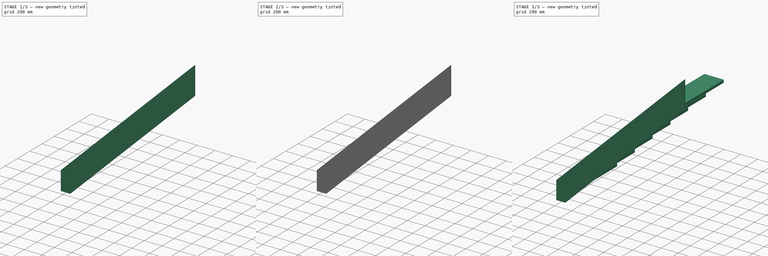
[diagram: build sequence overview — one tinted view per stage of 3, left to right]
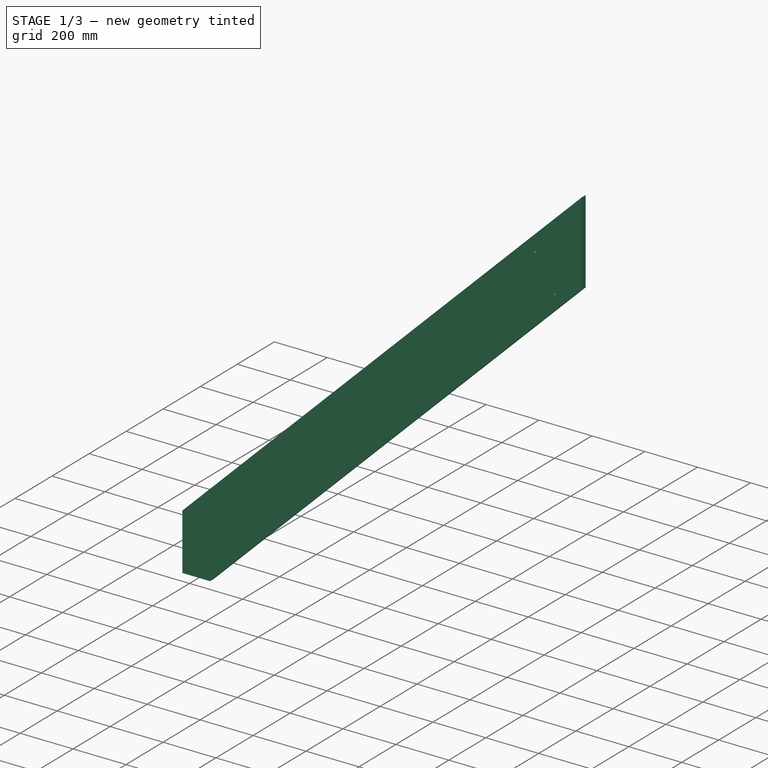
[diagram: stage 1 of 3 — iso view after this stage's code; geometry added in this stage tinted green]
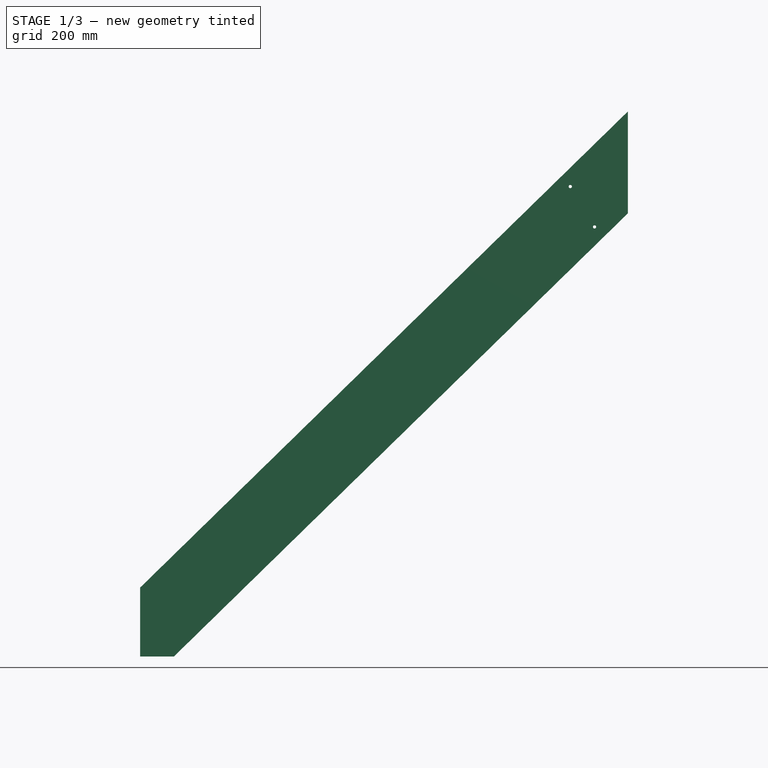
[diagram: stage 1 of 3 — front view after this stage's code; geometry added in this stage tinted green]
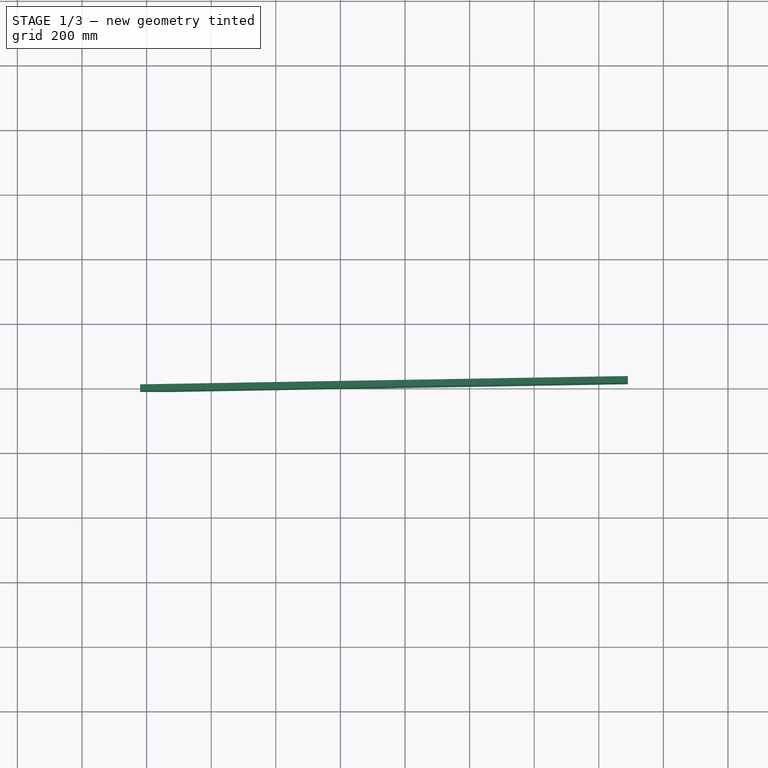
[diagram: stage 1 of 3 — top view after this stage's code; geometry added in this stage tinted green]
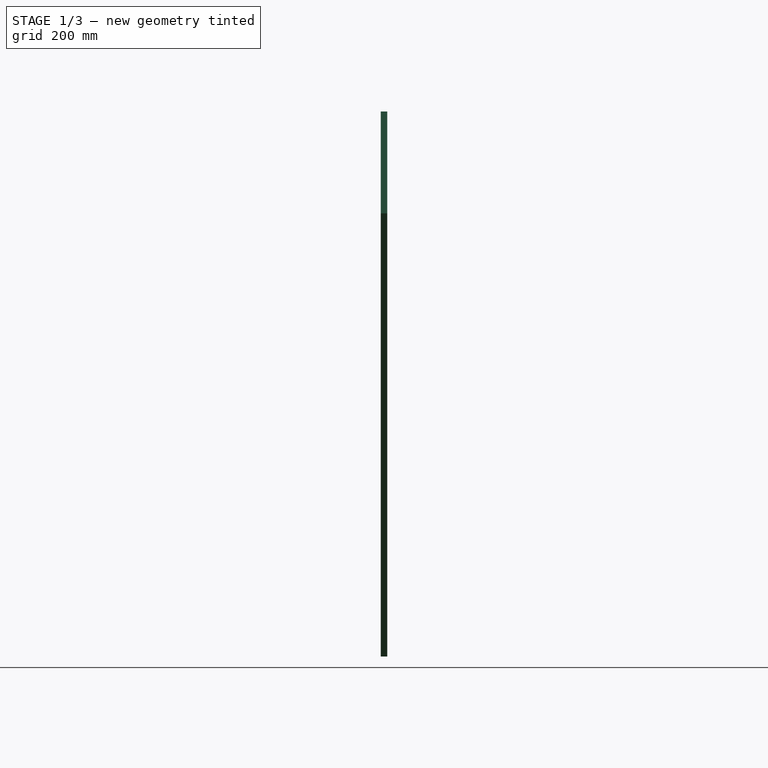
[diagram: stage 1 of 3 — right view after this stage's code; geometry added in this stage tinted green]
FCSTD DOCUMENT  (FreeCAD 0.17R10980 (Git))
Label: beam
License: All rights reserved
LicenseURL: http://en.wikipedia.org/wiki/All_rights_reserved
objects: Sketcher::SketchObject×3, Part::FeaturePython×2, PartDesign::Pocket×2, PartDesign::LinearPattern×2, PartDesign::Pad×1, Part::Part2DObjectPython×1, App::DocumentObjectGroup×1, PartDesign::Body×1, Part::Compound×1
note: 16 computed .brp shape members not serialized (recipe doc carries the construction recipe); baked Part::Feature solids carry a one-line shape summary decoded from their .brp

FEATURE [Part::FeaturePython] stair_profile_01  # a2plus imported part (geometry in sourceFile) (typed FeaturePython)
  fixedPosition = true
  sourceFile = stair_profile.fcstd
  timeLastImport = 1.49339e+09
  updateColors = true
FEATURE [Sketcher::SketchObject] Sketch
  Placement = pos=(0,0,0) rot=(-1,0,0;1.5708rad)
  sketch-geometry (27):
    g0: LineSegment [constr] StartX=0 StartY=0 StartZ=0 EndX=2105 EndY=0 EndZ=0
    g1: LineSegment [constr] StartX=1260 StartY=-1435 StartZ=0 EndX=1490 EndY=-1435 EndZ=0
    g2: LineSegment [constr] StartX=1490 StartY=-1435 StartZ=0 EndX=1490 EndY=-1400 EndZ=0
    g3: LineSegment [constr] StartX=1490 StartY=-1400 StartZ=0 EndX=1260 EndY=-1400 EndZ=0
    g4: LineSegment [constr] StartX=1260 StartY=-1400 StartZ=0 EndX=1260 EndY=-1435 EndZ=0
    g5: LineSegment [constr] StartX=0 StartY=0 StartZ=0 EndX=-775 EndY=0 EndZ=0
    g6: LineSegment [constr] StartX=-775 StartY=0 StartZ=0 EndX=-775 EndY=-2700 EndZ=0
    g7: LineSegment [constr] StartX=0 StartY=-205 StartZ=0 EndX=230 EndY=-205 EndZ=0
    g8: LineSegment [constr] StartX=230 StartY=-205 StartZ=0 EndX=230 EndY=-170 EndZ=0
    g9: LineSegment [constr] StartX=230 StartY=-170 StartZ=0 EndX=0 EndY=-170 EndZ=0
    g10: LineSegment [constr] StartX=0 StartY=-205 StartZ=0 EndX=0 EndY=-170 EndZ=0
    g11: LineSegment [constr] StartX=0 StartY=-205 StartZ=0 EndX=1260 EndY=-1435 EndZ=0
    g12: LineSegment [constr] StartX=1490 StartY=-1400 StartZ=0 EndX=230 EndY=-170 EndZ=0
    g13: LineSegment StartX=-20 StartY=-213.426 StartZ=0 EndX=1490 EndY=-1687.47 EndZ=0
    g14: LineSegment StartX=1490 StartY=-1372.05 StartZ=0 EndX=84.4849 EndY=0 EndZ=0
    g15: LineSegment StartX=-20 StartY=-213.426 StartZ=0 EndX=-20 EndY=0 EndZ=0
    g16: LineSegment StartX=-20 StartY=0 StartZ=0 EndX=84.4849 EndY=0 EndZ=0
    g17: LineSegment StartX=1490 StartY=-1372.05 StartZ=0 EndX=1490 EndY=-1687.47 EndZ=0
    g18: LineSegment [constr] StartX=5.65208 StartY=-80.7556 StartZ=0 EndX=1490 EndY=-1529.76 EndZ=0
    g19: LineSegment [constr] StartX=5.65208 StartY=-80.7556 StartZ=0 EndX=84.4849 EndY=0 EndZ=0
    g20: LineSegment [constr] StartX=5.65208 StartY=-80.7556 StartZ=0 EndX=-73.1808 EndY=-161.511 EndZ=0
    g21: LineSegment [constr] StartX=1311.89 StartY=-1330 StartZ=0 EndX=1386.89 EndY=-1330 EndZ=0
    g22: LineSegment [constr] StartX=1386.89 StartY=-1330 StartZ=0 EndX=1386.89 EndY=-1455 EndZ=0
    g23: LineSegment [constr] StartX=1386.89 StartY=-1455 StartZ=0 EndX=1311.89 EndY=-1455 EndZ=0
    g24: LineSegment [constr] StartX=1311.89 StartY=-1455 StartZ=0 EndX=1311.89 EndY=-1330 EndZ=0
    g25: LineSegment [constr] StartX=1311.89 StartY=-1455 StartZ=0 EndX=1361.43 EndY=-1404.25 EndZ=0
    g26: LineSegment [constr] StartX=1386.89 StartY=-1330 StartZ=0 EndX=1337.35 EndY=-1380.75 EndZ=0
  constraints (81):
    c: Horizontal(g1)
    c: Coincident(g1,g2)
    c: Vertical(g2)
    c: Coincident(g2,g3)
    c: Horizontal(g3)
    c: Coincident(g3,g4)
    c: Vertical(g4)
    c: Coincident(g4,g1)
    c: Vertical(g6)
    c: Horizontal(g7)
    c: Coincident(g7,g8)
    c: Vertical(g8)
    c: Coincident(g8,g9)
    c: Horizontal(g9)
    c: Coincident(g5,g6)
    c: DistanceY(g6,g6) = 2700
    c: DistanceX(g5,g5) = 775
    c: DistanceX(g0,g0) = 2105
    c: Coincident(g0,g5)
    c: Coincident(g0,g-1)
    c: Horizontal(g0)
    c: Horizontal(g5)
    c: DistanceY(g7,g-1) = 205
    c: DistanceX(g7,g7) = 230
    c: DistanceY(g8,g8) = 35
    c: Vertical(g10)
    c: Coincident(g7,g10)
    c: Coincident(g9,g10)
    c: PointOnObject(g9,g-2)
    c: DistanceX(g1,g7) = -1260
    c: DistanceY(g1,g7) = 1230
    c: DistanceX(g1,g1) = 230
    c: DistanceY(g2,g2) = 35
    c: Coincident(g7,g11)
    c: Coincident(g8,g12)
    c: Coincident(g2,g12)
    c: Coincident(g1,g11)
    c: Parallel(g14,g12)
    c: Parallel(g11,g13)
    c: DistanceX(g13,g-1) = 20
    c: PointOnObject(g14,g-1)
    c: Coincident(g15,g16)
    c: Coincident(g14,g16)
    c: PointOnObject(g15,g5)
    c: Vertical(g15)
    c: PointOnObject(g14,g2)
    c: Distance(g13,g11) = 20
    c: Distance(g14,g12) = 20
    c: Coincident(g14,g17)
    c: Coincident(g13,g17)
    c: Vertical(g17)
    c: Coincident(g13,g15)
    c: Parallel(g18,g12)  'Constraint55'
    c: PointOnObject(g18,g17)  'Constraint54'
    c: Coincident(g18,g19)
    c: Coincident(g18,g20)
    c: PointOnObject(g20,g13)
    c: PointOnObject(g19,g14)
    c: Equal(g19,g20)
    c: Parallel(g19,g20)
    c: Perpendicular(g18,g19)
    c: PointOnObject(g19,g5)
    c: Coincident(g21,g22)
    c: Coincident(g22,g23)
    c: Coincident(g23,g24)
    c: Coincident(g24,g21)
    c: Horizontal(g21)
    c: Horizontal(g23)
    c: Vertical(g22)
    c: Vertical(g24)
    c: DistanceX(g23,g23) = 75
    c: Coincident(g21,g26)
    c: Coincident(g23,g25)
    c: Perpendicular(g18,g25)
    c: PointOnObject(g25,g18)
    c: Perpendicular(g18,g26)
    c: Equal(g26,g25)
    c: PointOnObject(g26,g18)
    c: DistanceY(g24,g24) = 125
    c: DistanceY(g23,g1) = 20
    c: Distance(g21,g14) = 41.9358
FEATURE [PartDesign::Pad] Pad001
  Length = 20
  Length2 = 100
  Midplane = true
  Placement = pos=(0,0,0) rot=(-1,0,0;1.5708rad)
  Profile = -> Sketch
  Type = 0
FEATURE [Sketcher::SketchObject] Sketch002
  MapMode = 5
  Placement = pos=(0,-10,0) rot=(1,0,0;1.5708rad)
  Support = -> [Pad001]
  expr: Constraints[16] = Sketch.Constraints[16]
  expr: Constraints[17] = Sketch.Constraints[17]
  expr: Constraints[22] = -Sketch.Constraints[22]
  expr: Constraints[23] = Sketch.Constraints[23]
  expr: Constraints[32] = -Sketch.Constraints[32]
  expr: Constraints[31] = Sketch.Constraints[31]
  expr: Constraints[24] = -Sketch.Constraints[24]
  expr: Constraints[29] = Sketch.Constraints[29]
  expr: Constraints[30] = -Sketch.Constraints[30]
  expr: Constraints[69] = Sketch.Constraints[70]
  expr: Constraints[39] = Sketch.Constraints[39]
  expr: Constraints[77] = -Sketch.Constraints[78]
  expr: Constraints[15] = -Sketch.Constraints[15]
  expr: Constraints[78] = -Sketch.Constraints[79]
  sketch-geometry (31):
    g0: LineSegment [constr] StartX=0 StartY=0 StartZ=0 EndX=2105 EndY=0 EndZ=0
    g1: LineSegment [constr] StartX=1260 StartY=1435 StartZ=0 EndX=1490 EndY=1435 EndZ=0
    g2: LineSegment [constr] StartX=1490 StartY=1435 StartZ=0 EndX=1490 EndY=1400 EndZ=0
    g3: LineSegment [constr] StartX=1490 StartY=1400 StartZ=0 EndX=1260 EndY=1400 EndZ=0
    g4: LineSegment [constr] StartX=1260 StartY=1400 StartZ=0 EndX=1260 EndY=1435 EndZ=0
    g5: LineSegment [constr] StartX=0 StartY=0 StartZ=0 EndX=-775 EndY=0 EndZ=0
    g6: LineSegment [constr] StartX=-775 StartY=0 StartZ=0 EndX=-775 EndY=2700 EndZ=0
    g7: LineSegment [constr] StartX=0 StartY=205 StartZ=0 EndX=230 EndY=205 EndZ=0
    g8: LineSegment [constr] StartX=230 StartY=205 StartZ=0 EndX=230 EndY=170 EndZ=0
    g9: LineSegment [constr] StartX=230 StartY=170 StartZ=0 EndX=0 EndY=170 EndZ=0
    g10: LineSegment [constr] StartX=0 StartY=205 StartZ=0 EndX=0 EndY=170 EndZ=0
    g11: LineSegment [constr] StartX=0 StartY=205 StartZ=0 EndX=1260 EndY=1435 EndZ=0
    g12: LineSegment [constr] StartX=1490 StartY=1400 StartZ=0 EndX=230 EndY=170 EndZ=0
    g13: LineSegment [constr] StartX=-20 StartY=213.426 StartZ=0 EndX=1490 EndY=1687.47 EndZ=0
    g14: LineSegment [constr] StartX=1490 StartY=1372.05 StartZ=0 EndX=84.4849 EndY=0 EndZ=0
    g15: LineSegment [constr] StartX=-20 StartY=213.426 StartZ=0 EndX=-20 EndY=0 EndZ=0
    g16: LineSegment [constr] StartX=-20 StartY=0 StartZ=0 EndX=84.4849 EndY=0 EndZ=0
    g17: LineSegment [constr] StartX=1490 StartY=1372.05 StartZ=0 EndX=1490 EndY=1687.47 EndZ=0
    g18: LineSegment [constr] StartX=5.65208 StartY=80.7556 StartZ=0 EndX=1490 EndY=1529.76 EndZ=0
    g19: LineSegment [constr] StartX=5.65208 StartY=80.7556 StartZ=0 EndX=84.4849 EndY=0 EndZ=0
    g20: LineSegment [constr] StartX=5.65208 StartY=80.7556 StartZ=0 EndX=-73.1808 EndY=161.511 EndZ=0
    g21: LineSegment [constr] StartX=1311.89 StartY=1330 StartZ=0 EndX=1386.89 EndY=1330 EndZ=0
    g22: LineSegment [constr] StartX=1386.89 StartY=1330 StartZ=0 EndX=1386.89 EndY=1455 EndZ=0
    g23: LineSegment [constr] StartX=1386.89 StartY=1455 StartZ=0 EndX=1311.89 EndY=1455 EndZ=0
    g24: LineSegment [constr] StartX=1311.89 StartY=1455 StartZ=0 EndX=1311.89 EndY=1330 EndZ=0
    g25: LineSegment [constr] StartX=1311.89 StartY=1455 StartZ=0 EndX=1361.43 EndY=1404.25 EndZ=0
    g26: LineSegment [constr] StartX=1386.89 StartY=1330 StartZ=0 EndX=1337.35 EndY=1380.75 EndZ=0
    g27: Circle CenterX=1311.89 CenterY=1455 CenterZ=0 NormalX=0 NormalY=0 NormalZ=1 Radius=5
    g28: Circle CenterX=1386.89 CenterY=1330 CenterZ=0 NormalX=0 NormalY=0 NormalZ=1 Radius=5
    g29: Circle [constr] CenterX=1386.89 CenterY=1455 CenterZ=0 NormalX=0 NormalY=0 NormalZ=1 Radius=5
    g30: Circle [constr] CenterX=1311.89 CenterY=1330 CenterZ=0 NormalX=0 NormalY=0 NormalZ=1 Radius=5
  constraints (88):
    c: Horizontal(g1)
    c: Coincident(g1,g2)
    c: Vertical(g2)
    c: Coincident(g2,g3)
    c: Horizontal(g3)
    c: Coincident(g3,g4)
    c: Vertical(g4)
    c: Coincident(g4,g1)
    c: Vertical(g6)
    c: Horizontal(g7)
    c: Coincident(g7,g8)
    c: Vertical(g8)
    c: Coincident(g8,g9)
    c: Horizontal(g9)
    c: Coincident(g5,g6)
    c: DistanceY(g6,g6) = -2700
    c: DistanceX(g5,g5) = 775
    c: DistanceX(g0,g0) = 2105
    c: Coincident(g0,g5)
    c: Coincident(g0,g-1)
    c: Horizontal(g0)
    c: Horizontal(g5)
    c: DistanceY(g7,g-1) = -205
    c: DistanceX(g7,g7) = 230
    c: DistanceY(g8,g8) = -35
    c: Vertical(g10)
    c: Coincident(g7,g10)
    c: Coincident(g9,g10)
    c: PointOnObject(g9,g-2)
    c: DistanceX(g1,g7) = -1260
    c: DistanceY(g1,g7) = -1230
    c: DistanceX(g1,g1) = 230
    c: DistanceY(g2,g2) = -35
    c: Coincident(g7,g11)
    c: Coincident(g8,g12)
    c: Coincident(g2,g12)
    c: Coincident(g1,g11)
    c: Parallel(g14,g12)
    c: Parallel(g11,g13)
    c: DistanceX(g13,g-1) = 20
    c: PointOnObject(g14,g-1)
    c: Coincident(g15,g16)
    c: Coincident(g14,g16)
    c: PointOnObject(g15,g5)
    c: Vertical(g15)
    c: PointOnObject(g14,g2)
    c: Distance(g14,g12) = 20
    c: Coincident(g14,g17)
    c: Coincident(g13,g17)
    c: Vertical(g17)
    c: Coincident(g13,g15)
    c: Parallel(g18,g12)  'Constraint55'
    c: PointOnObject(g18,g17)  'Constraint54'
    c: Coincident(g18,g19)
    c: Coincident(g18,g20)
    c: PointOnObject(g20,g13)
    c: PointOnObject(g19,g14)
    c: Equal(g19,g20)
    c: Parallel(g19,g20)
    c: Perpendicular(g18,g19)
    c: PointOnObject(g19,g5)
    c: Coincident(g21,g22)
    c: Coincident(g22,g23)
    c: Coincident(g23,g24)
    c: Coincident(g24,g21)
    c: Horizontal(g21)
    c: Horizontal(g23)
    c: Vertical(g22)
    c: Vertical(g24)
    c: DistanceX(g23,g23) = 75
    c: Coincident(g21,g26)
    c: Coincident(g23,g25)
    c: Perpendicular(g18,g25)
    c: PointOnObject(g25,g18)
    c: Perpendicular(g18,g26)
    c: Equal(g26,g25)
    c: PointOnObject(g26,g18)
    c: DistanceY(g24,g24) = -125
    c: DistanceY(g23,g1) = -20
    c: Distance(g13,g11) = 20
    c: Coincident(g27,g23)
    c: Coincident(g28,g21)
    c: Radius(g27) = 5  'hole_radius'
    c: Equal(g28,g27)
    c: Coincident(g29,g22)
    c: Coincident(g30,g21)
    c: Equal(g29,g27)
    c: Equal(g30,g27)
FEATURE [PartDesign::Pocket] Pocket
  BaseFeature = -> Pad001
  Length = 5
  Placement = pos=(0,0,0) rot=(-1,0,0;1.5708rad)
  Profile = -> Sketch002
  Type = 1
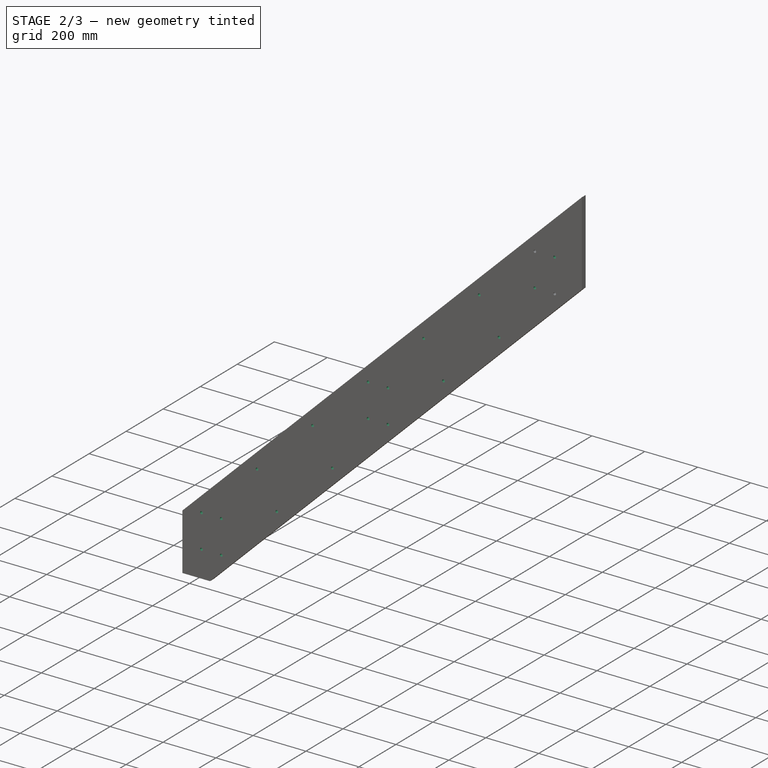
[diagram: stage 2 of 3 — iso view after this stage's code; geometry added in this stage tinted green]
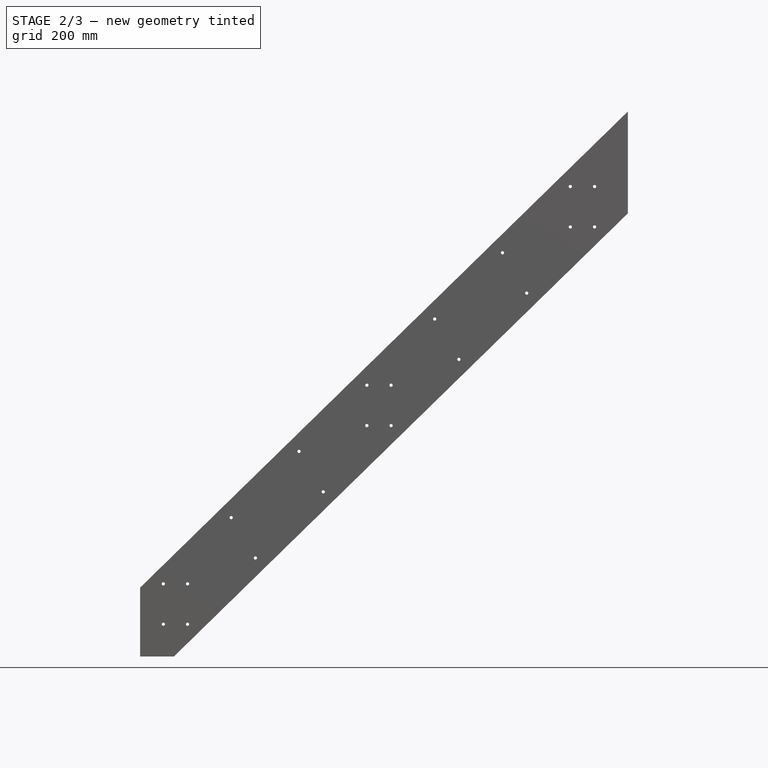
[diagram: stage 2 of 3 — front view after this stage's code; geometry added in this stage tinted green]
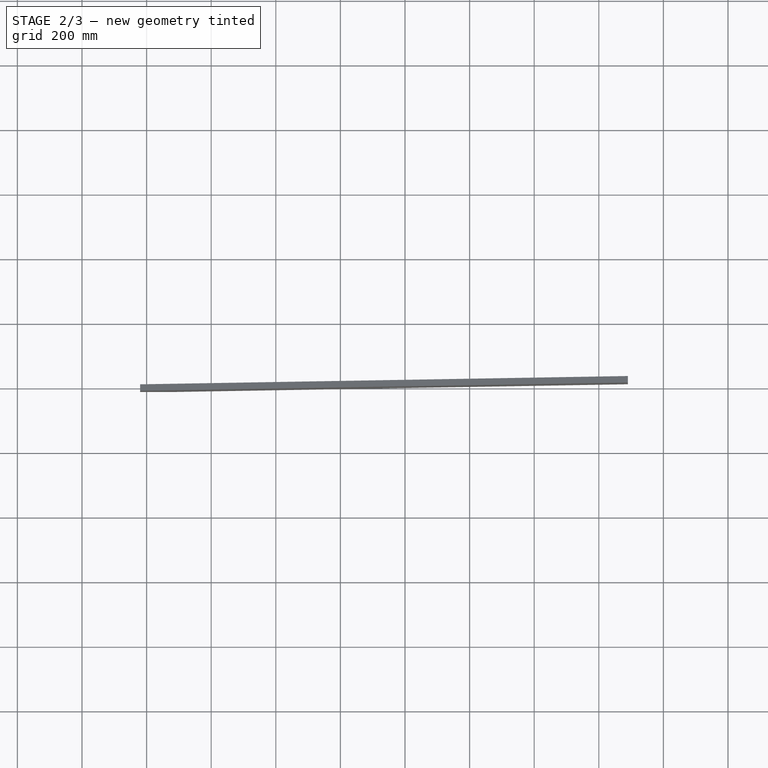
[diagram: stage 2 of 3 — top view after this stage's code; geometry added in this stage tinted green]
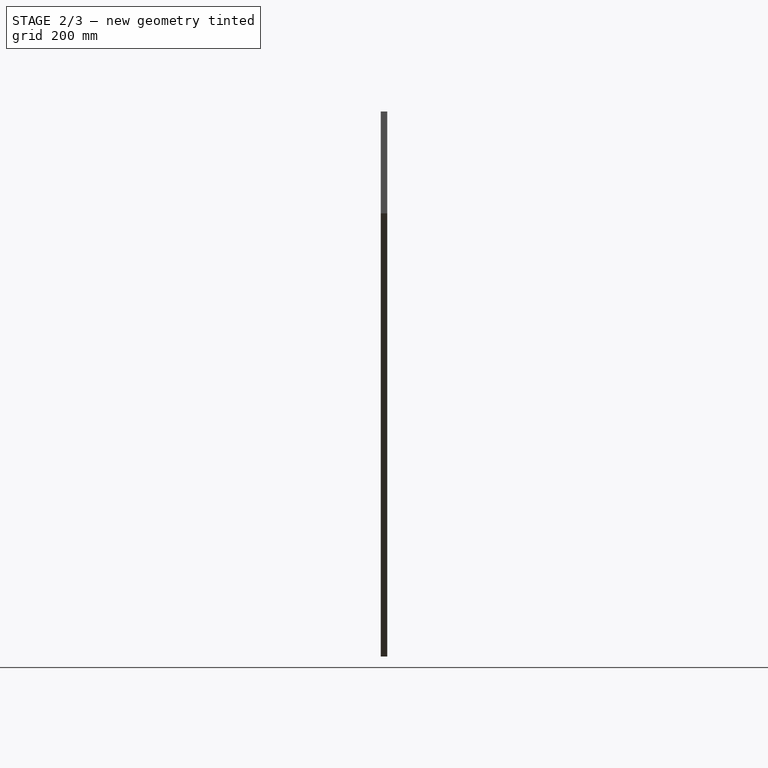
[diagram: stage 2 of 3 — right view after this stage's code; geometry added in this stage tinted green]
FEATURE [PartDesign::LinearPattern] LinearPattern
  BaseFeature = -> Pocket
  Direction = -> Sketch002 [Axis18]
  Length = 2054.29
  Occurrences = 8
  Originals = -> [Pocket]
  Placement = pos=(0,0,0) rot=(-1,0,0;1.5708rad)
  Reversed = true
  expr: Length = Line.Length * 7
FEATURE [Part::Part2DObjectPython] Line  # Draft 2D object (typed FeaturePython)
  ChamferSize = 0
  Closed = false
  End = (1890,0,2050)
  FilletRadius = 0
  Length = 293.471
  MakeFace = true
  Points = (2) [(1680,0,1845),(1890,0,2050)]
  Start = (1680,0,1845)
  Subdivisions = 0
FEATURE [App::DocumentObjectGroup] Group  label="utilities"
  Group = -> [Line,step_01,stair_profile_01]
FEATURE [Sketcher::SketchObject] Sketch003
  ExternalGeometry = -> [LinearPattern]
  MapMode = 5
  Placement = pos=(0,-10,0) rot=(1,0,0;1.5708rad)
  Support = -> [LinearPattern]
  sketch-geometry (7):
    g0: LineSegment [constr] StartX=1311.89 StartY=1455 StartZ=0 EndX=1386.89 EndY=1455 EndZ=0
    g1: LineSegment [constr] StartX=1386.89 StartY=1455 StartZ=0 EndX=1386.89 EndY=1330 EndZ=0
    g2: LineSegment [constr] StartX=1386.89 StartY=1330 StartZ=0 EndX=1311.89 EndY=1330 EndZ=0
    g3: LineSegment [constr] StartX=1311.89 StartY=1330 StartZ=0 EndX=1311.89 EndY=1455 EndZ=0
    g4: Circle CenterX=1386.89 CenterY=1455 CenterZ=0 NormalX=0 NormalY=0 NormalZ=1 Radius=5
    g5: Circle CenterX=1311.89 CenterY=1330 CenterZ=0 NormalX=0 NormalY=0 NormalZ=1 Radius=5
    g6: LineSegment [constr] StartX=1311.89 StartY=1455 StartZ=0 EndX=1101.89 EndY=1250 EndZ=0
  constraints (16):
    c: Coincident(g0,g1)
    c: Coincident(g1,g2)
    c: Coincident(g2,g3)
    c: Coincident(g3,g0)
    c: Horizontal(g0)
    c: Horizontal(g2)
    c: Vertical(g1)
    c: Vertical(g3)
    c: Coincident(g0,g-3)
    c: Coincident(g1,g-4)
    c: Coincident(g4,g0)
    c: Coincident(g5,g2)
    c: Equal(g4,g-3)
    c: Equal(g5,g4)
    c: Coincident(g6,g0)
    c: Coincident(g6,g-5)
FEATURE [PartDesign::Pocket] Pocket001
  BaseFeature = -> LinearPattern
  Length = 5
  Placement = pos=(0,0,0) rot=(-1,0,0;1.5708rad)
  Profile = -> Sketch003
  Type = 1
FEATURE [PartDesign::LinearPattern] LinearPattern001
  BaseFeature = -> Pocket001
  Direction = -> Sketch003 [Axis4]
  Length = 1760.82
  Occurrences = 3
  Originals = -> [Pocket001]
  Placement = pos=(0,0,0) rot=(-1,0,0;1.5708rad)
  expr: Length = Line.Length * 6
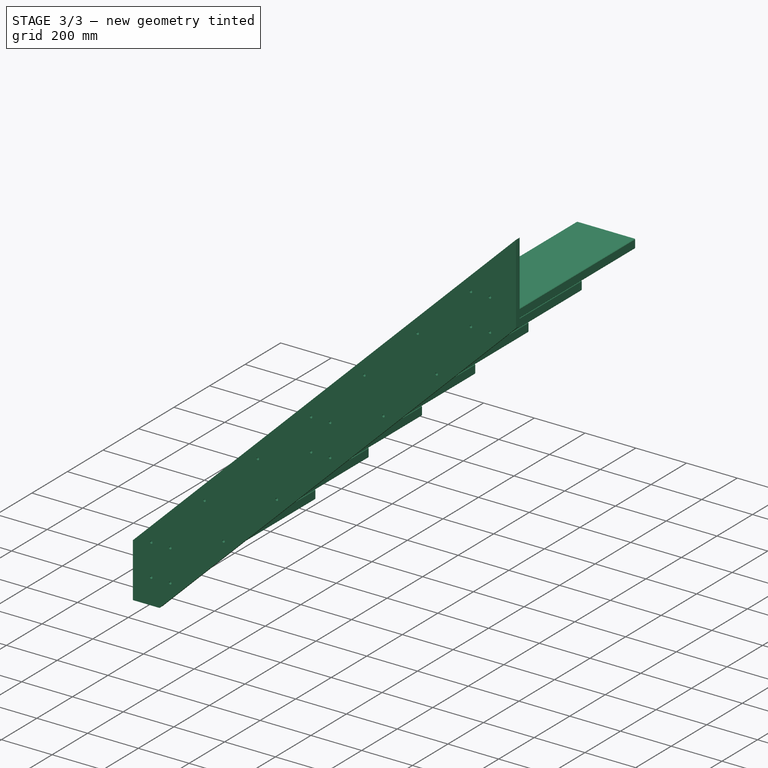
[diagram: stage 3 of 3 — iso view after this stage's code; geometry added in this stage tinted green]
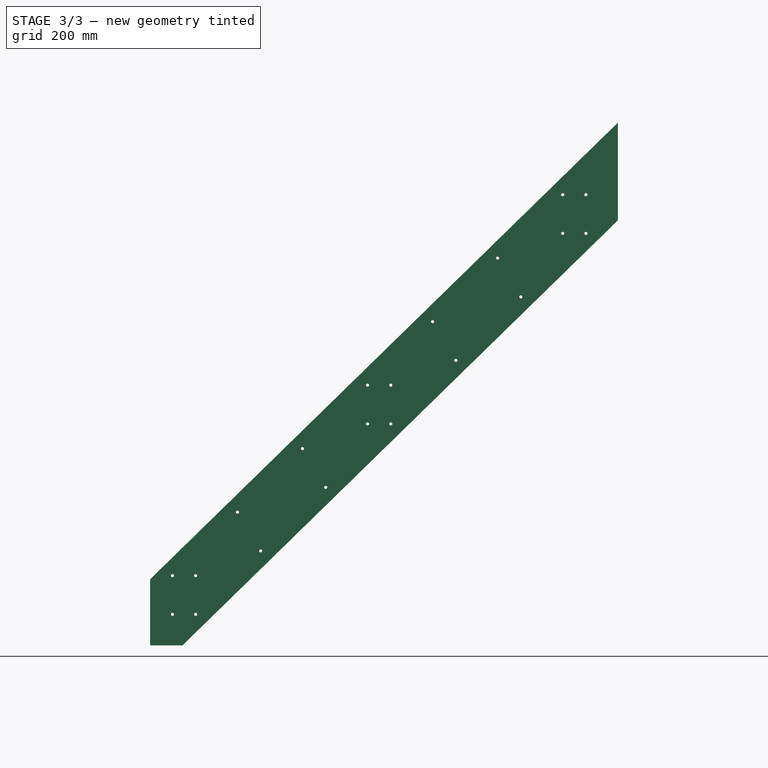
[diagram: stage 3 of 3 — front view after this stage's code; geometry added in this stage tinted green]
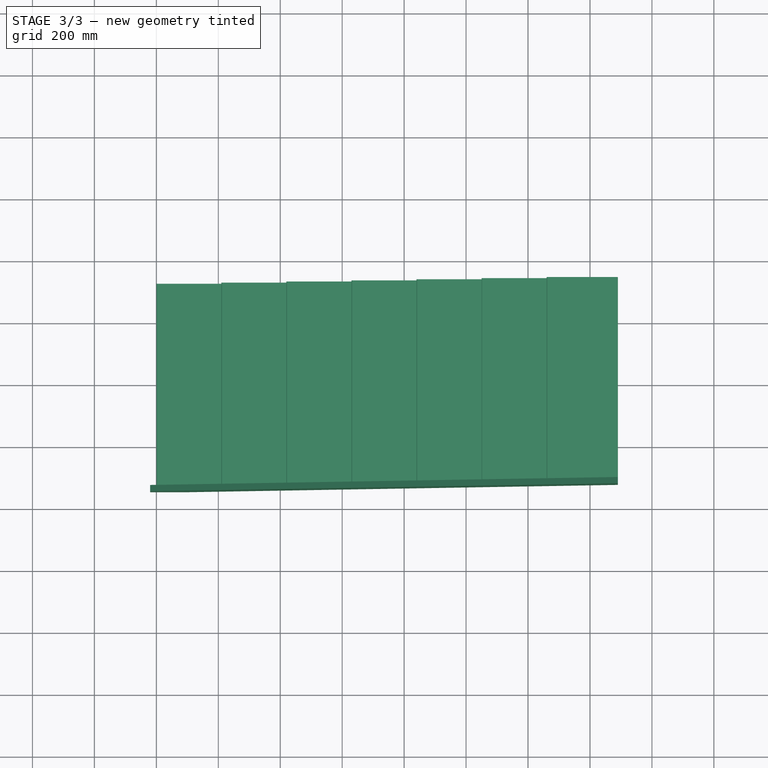
[diagram: stage 3 of 3 — top view after this stage's code; geometry added in this stage tinted green]
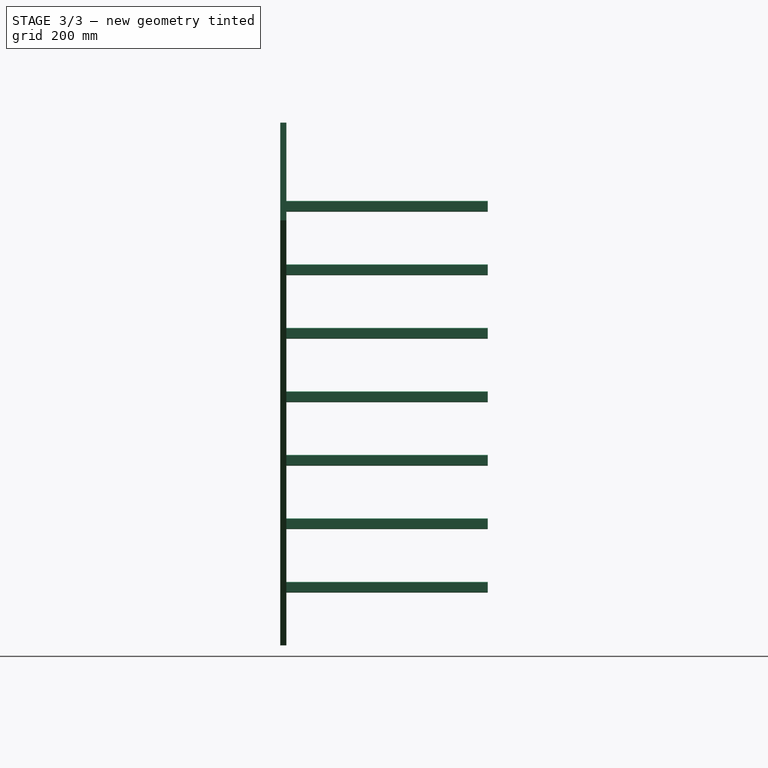
[diagram: stage 3 of 3 — right view after this stage's code; geometry added in this stage tinted green]
FEATURE [Part::FeaturePython] step_01  # a2plus imported part (geometry in sourceFile) (typed FeaturePython)
  fixedPosition = false
  sourceFile = step.fcstd
  timeLastImport = 1.49338e+09
  updateColors = true
FEATURE [PartDesign::Body] Body001
  Group = -> [Sketch,Pad001,Sketch002,Pocket,LinearPattern,Sketch003,Pocket001,LinearPattern001]
  Origin = -> Body001Origin
  Placement = pos=(0,-335,0) rot=(0,0,1;0rad)
  Tip = -> LinearPattern001
FEATURE [Part::Compound] Compound
  Links = -> [Body001]
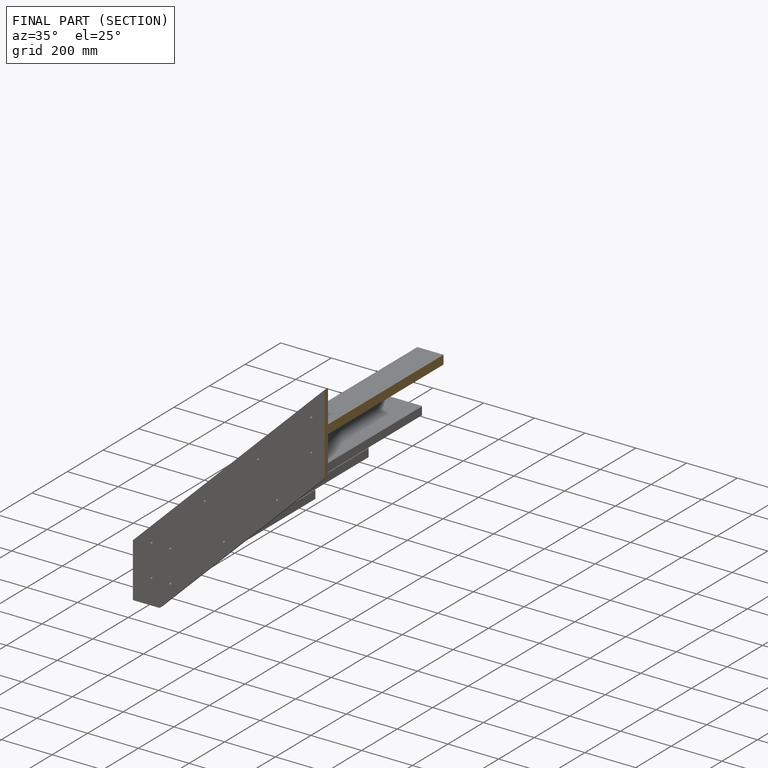
[diagram: finished part — half-section view (interior)]
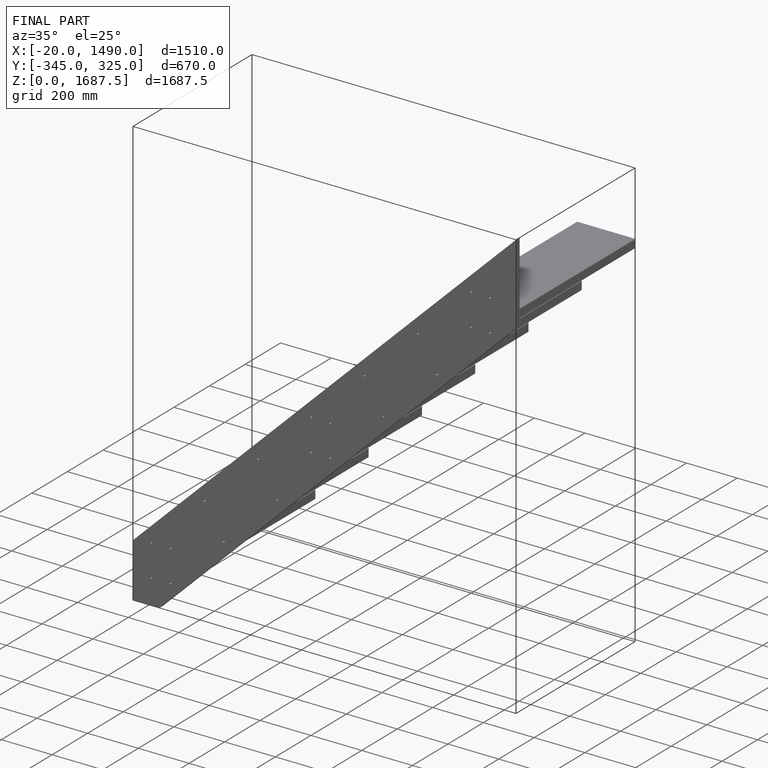
[diagram: finished part — iso view with bounding-box wireframe]
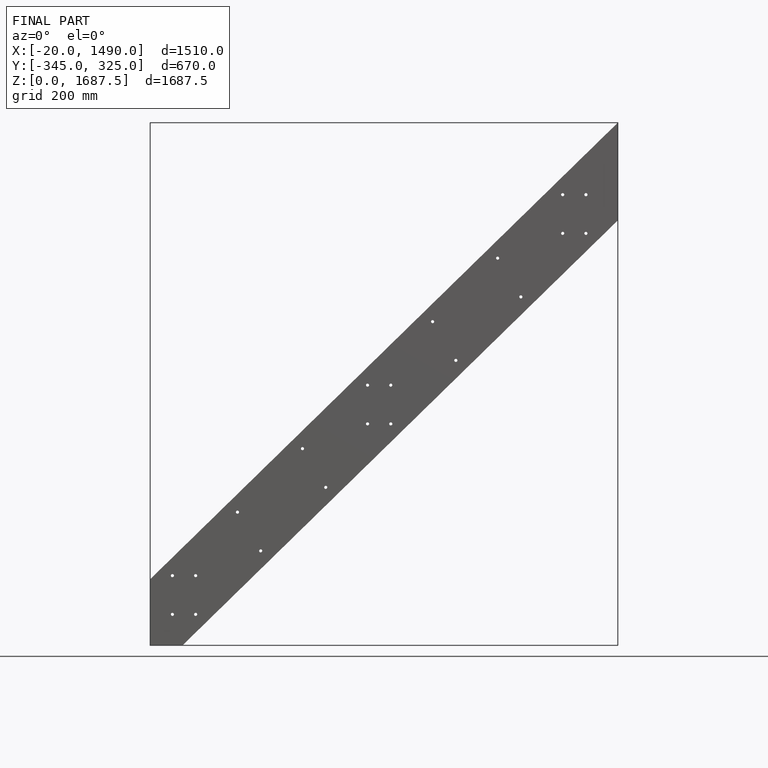
[diagram: finished part — front view with bounding-box wireframe]
